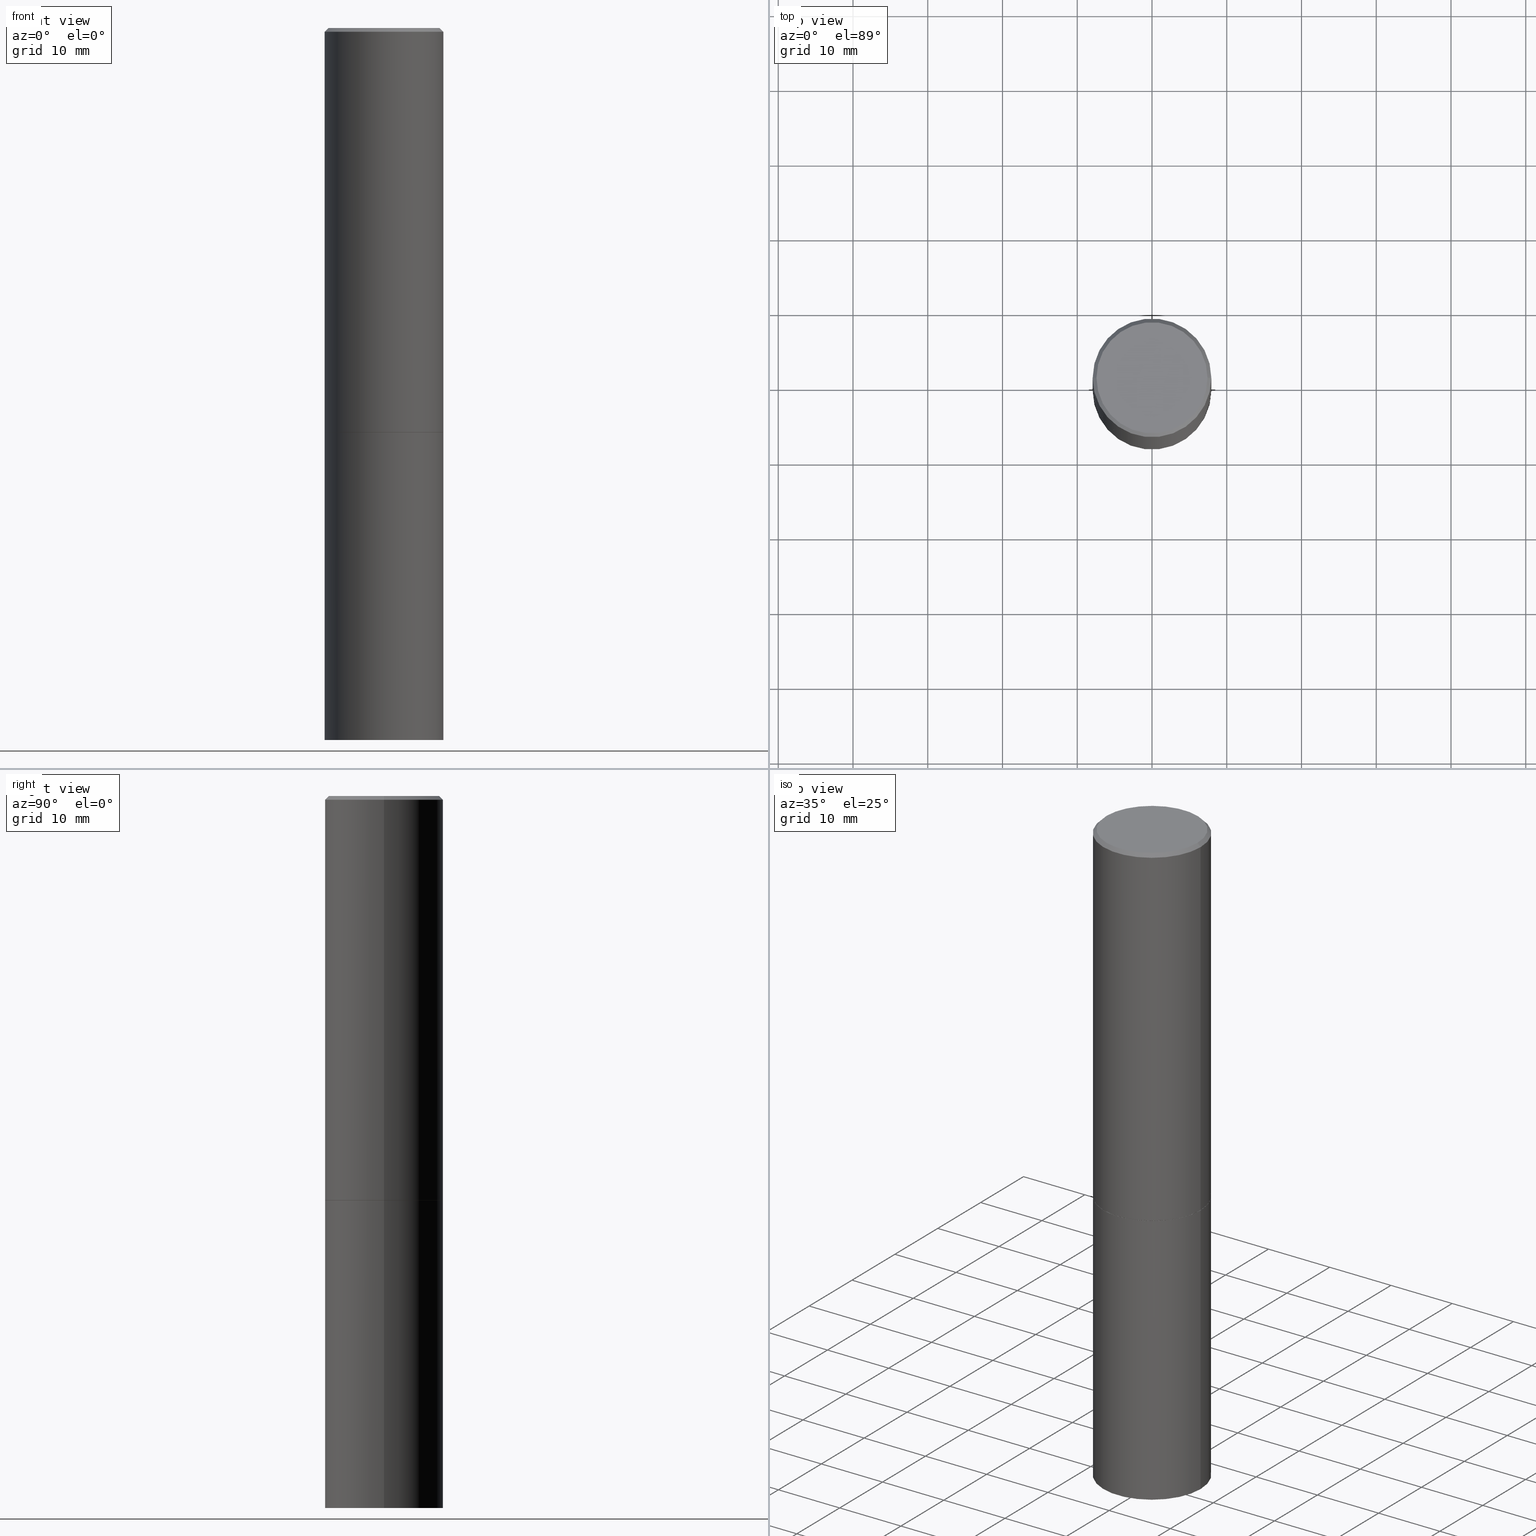
[diagram: canonical four-view strip — front | top / right | iso, engineering-drawing reading convention]
A machine part, canonical four-view strip (front | top / right | iso — engineering-drawing reading convention). The complete STEP part file that produces these views, byte-faithful:
ISO-10303-21;
HEADER;
FILE_DESCRIPTION (( 'STEP AP203' ),
    '1' );
FILE_NAME ('34626.STEP',
    '2024-02-27T16:31:24',
    ( '' ),
    ( '' ),
    'SwSTEP 2.0',
    'SolidWorks 2023',
    '' );
FILE_SCHEMA (( 'CONFIG_CONTROL_DESIGN' ));
ENDSEC;

DATA;
#1 = DIRECTION ( 'NONE',  ( -2.445468806185136597E-29, 3.491481338843145583E-15, 1.000000000000000000 ) ) ;
#2 = CLOSED_SHELL ( 'NONE', ( #269, #187, #178, #171, #207, #67, #230, #317 ) ) ;
#3 = CIRCLE ( 'NONE', #96, 0.3125000000000000000 ) ;
#4 = DIMENSIONAL_EXPONENTS ( 1.000000000000000000, 0.000000000000000000, 0.000000000000000000, 0.000000000000000000, 0.000000000000000000, 0.000000000000000000, 0.000000000000000000 ) ;
#5 = LENGTH_MEASURE_WITH_UNIT ( LENGTH_MEASURE( 0.02539999999999999897 ), #233 );
#6 = ORIENTED_EDGE ( 'NONE', *, *, #288, .F. ) ;
#7 =( CONVERSION_BASED_UNIT ( 'INCH', #5 ) LENGTH_UNIT ( ) NAMED_UNIT ( #4 ) );
#8 = VERTEX_POINT ( 'NONE', #184 ) ;
#9 = EDGE_CURVE ( 'NONE', #280, #33, #139, .T. ) ;
#10 = ORIENTED_EDGE ( 'NONE', *, *, #98, .F. ) ;
#11 = ORIENTED_EDGE ( 'NONE', *, *, #150, .T. ) ;
#12 = CARTESIAN_POINT ( 'NONE',  ( 0.3124999999999998335, -2.213735251080465334E-15, -0.02000000000000006287 ) ) ;
#13 = CARTESIAN_POINT ( 'NONE',  ( 0.3125000000000000000, -9.619031088512858584E-15, -2.129999999999999893 ) ) ;
#14 = LINE ( 'NONE', #210, #347 ) ;
#15 = DIRECTION ( 'NONE',  ( 0.7071067811865467956, -7.319954787623254468E-15, -0.7071067811865482389 ) ) ;
#16 = EDGE_LOOP ( 'NONE', ( #238, #252, #127, #234 ) ) ;
#17 = CIRCLE ( 'NONE', #68, 0.3124999999999998335 ) ;
#18 = ORIENTED_EDGE ( 'NONE', *, *, #9, .T. ) ;
#19 = AXIS2_PLACEMENT_3D ( 'NONE', #311, #55, #60 ) ;
#20 = ORIENTED_EDGE ( 'NONE', *, *, #145, .T. ) ;
#21 = CALENDAR_DATE ( 2024, 27, 2 ) ;
#22 = EDGE_LOOP ( 'NONE', ( #180, #361 ) ) ;
#23 = COORDINATED_UNIVERSAL_TIME_OFFSET ( 5, 0, .BEHIND. ) ;
#24 = VERTEX_POINT ( 'NONE', #71 ) ;
#25 = DIRECTION ( 'NONE',  ( 2.438088387897960049E-29, -3.491481338843145188E-15, -1.000000000000000000 ) ) ;
#26 = APPROVAL ( #168, 'UNSPECIFIED' ) ;
#27 = CARTESIAN_POINT ( 'NONE',  ( 4.890937612370288923E-31, -6.982962677686312563E-17, -0.02000000000000006287 ) ) ;
#28 = COORDINATED_UNIVERSAL_TIME_OFFSET ( 5, 0, .BEHIND. ) ;
#29 = EDGE_LOOP ( 'NONE', ( #224, #273 ) ) ;
#30 = DIRECTION ( 'NONE',  ( 1.000000000000000000, -6.982962677686265922E-15, 0.000000000000000000 ) ) ;
#31 = AXIS2_PLACEMENT_3D ( 'NONE', #331, #354, #78 ) ;
#32 = PRODUCT_DEFINITION_FORMATION_WITH_SPECIFIED_SOURCE ( 'ANY', '', #316, .NOT_KNOWN. ) ;
#33 = VERTEX_POINT ( 'NONE', #328 ) ;
#34 = DIRECTION ( 'NONE',  ( -2.438088387897960049E-29, 3.491481338843145188E-15, 1.000000000000000000 ) ) ;
#35 = DIRECTION ( 'NONE',  ( -1.000000000000000000, 6.982962677686265133E-15, 0.000000000000000000 ) ) ;
#36 = EDGE_CURVE ( 'NONE', #205, #356, #92, .T. ) ;
#37 = PLANE ( 'NONE',  #353 ) ;
#38 = AXIS2_PLACEMENT_3D ( 'NONE', #237, #105, #351 ) ;
#39 = AXIS2_PLACEMENT_3D ( 'NONE', #260, #208, #70 ) ;
#40 = MANIFOLD_SOLID_BREP ( 'Body-Move/Copy2[2]', #2 ) ;
#41 = MANIFOLD_SOLID_BREP ( 'Body-Move/Copy2[1]', #80 ) ;
#42 = ORIENTED_EDGE ( 'NONE', *, *, #225, .F. ) ;
#43 =( NAMED_UNIT ( * ) SI_UNIT ( $, .STERADIAN. ) SOLID_ANGLE_UNIT ( ) );
#44 = CC_DESIGN_PERSON_AND_ORGANIZATION_ASSIGNMENT ( #106, #146, ( #32 ) ) ;
#45 = ADVANCED_BREP_SHAPE_REPRESENTATION ( '34626', ( #41, #40, #39 ), #61 ) ;
#46 = CARTESIAN_POINT ( 'NONE',  ( 5.208848557174341041E-29, -7.436855251735900237E-15, -2.129999999999999893 ) ) ;
#47 = CARTESIAN_POINT ( 'NONE',  ( 5.206403088368155438E-29, -7.433363770397055652E-15, -2.129000000000000004 ) ) ;
#48 = AXIS2_PLACEMENT_3D ( 'NONE', #350, #103, #188 ) ;
#49 = AXIS2_PLACEMENT_3D ( 'NONE', #245, #274, #195 ) ;
#50 = CARTESIAN_POINT ( 'NONE',  ( 0.3114999999999999991, -9.612048125835172570E-15, -2.130000000000000338 ) ) ;
#51 = APPROVAL_ROLE ( '' ) ;
#52 = DIRECTION ( 'NONE',  ( 1.000000000000000000, -6.982962677686265922E-15, 0.000000000000000000 ) ) ;
#53 = PERSON_AND_ORGANIZATION ( #228, #296 ) ;
#54 = ORIENTED_EDGE ( 'NONE', *, *, #158, .T. ) ;
#55 = DIRECTION ( 'NONE',  ( 2.438088387897960049E-29, -3.491481338843145188E-15, -1.000000000000000000 ) ) ;
#56 = PERSON_AND_ORGANIZATION_ROLE ( 'classification_officer' ) ;
#57 = DIRECTION ( 'NONE',  ( -0.7071067811864267805, 7.493145998869918709E-15, 0.7071067811866682540 ) ) ;
#58 = SECURITY_CLASSIFICATION_LEVEL ( 'unclassified' ) ;
#59 = DIRECTION ( 'NONE',  ( 2.438088387897960049E-29, -3.491481338843145188E-15, -1.000000000000000000 ) ) ;
#60 = DIRECTION ( 'NONE',  ( -1.000000000000000000, 6.982962677686265922E-15, -4.876176775795935793E-29 ) ) ;
#61 =( GEOMETRIC_REPRESENTATION_CONTEXT ( 3 ) GLOBAL_UNCERTAINTY_ASSIGNED_CONTEXT ( ( #190 ) ) GLOBAL_UNIT_ASSIGNED_CONTEXT ( ( #7, #291, #43 ) ) REPRESENTATION_CONTEXT ( 'NONE', 'WORKASPACE' ) );
#62 = EDGE_CURVE ( 'NONE', #8, #284, #298, .T. ) ;
#63 = DIRECTION ( 'NONE',  ( -2.445468806185136597E-29, 3.491481338843145583E-15, 1.000000000000000000 ) ) ;
#64 = CIRCLE ( 'NONE', #326, 0.2924999999999997602 ) ;
#65 = ORIENTED_EDGE ( 'NONE', *, *, #158, .F. ) ;
#66 = APPLICATION_CONTEXT ( 'configuration controlled 3d designs of mechanical parts and assemblies' ) ;
#67 = ADVANCED_FACE ( 'NONE', ( #297 ), #285, .T. ) ;
#68 = AXIS2_PLACEMENT_3D ( 'NONE', #77, #341, #90 ) ;
#69 = CC_DESIGN_APPROVAL ( #102, ( #108 ) ) ;
#70 = DIRECTION ( 'NONE',  ( 1.000000000000000000, 0.000000000000000000, 0.000000000000000000 ) ) ;
#71 = CARTESIAN_POINT ( 'NONE',  ( 0.3124999999999998335, -2.213735251080465334E-15, -0.02000000000000006287 ) ) ;
#72 = CIRCLE ( 'NONE', #250, 0.3125000000000000000 ) ;
#73 = ADVANCED_FACE ( 'NONE', ( #76 ), #241, .T. ) ;
#74 = ORIENTED_EDGE ( 'NONE', *, *, #240, .F. ) ;
#75 = EDGE_LOOP ( 'NONE', ( #289, #333, #221, #235 ) ) ;
#76 = FACE_OUTER_BOUND ( 'NONE', #346, .T. ) ;
#77 = CARTESIAN_POINT ( 'NONE',  ( 4.890937612370288923E-31, -6.982962677686312563E-17, -0.02000000000000006287 ) ) ;
#78 = DIRECTION ( 'NONE',  ( 1.000000000000000000, -6.982962677686266711E-15, 4.876176775795936353E-29 ) ) ;
#79 = CC_DESIGN_PERSON_AND_ORGANIZATION_ASSIGNMENT ( #162, #305, ( #316 ) ) ;
#80 = CLOSED_SHELL ( 'NONE', ( #183, #323, #343, #73 ) ) ;
#81 = PERSON_AND_ORGANIZATION ( #228, #296 ) ;
#82 = CONICAL_SURFACE ( 'NONE', #182, 0.3114999999999999991, 0.7853981633972775267 ) ;
#83 = EDGE_LOOP ( 'NONE', ( #200, #191, #151, #128 ) ) ;
#84 = CARTESIAN_POINT ( 'NONE',  ( -0.3125000000000000000, -8.044509086948536533E-15, -2.129999999999999893 ) ) ;
#85 = CYLINDRICAL_SURFACE ( 'NONE', #359, 0.3125000000000000000 ) ;
#86 = DATE_AND_TIME ( #173, #264 ) ;
#87 = ORIENTED_EDGE ( 'NONE', *, *, #300, .F. ) ;
#88 = CARTESIAN_POINT ( 'NONE',  ( -0.3124999999999998335, 2.112346210000093866E-15, -0.02000000000000006287 ) ) ;
#89 = CALENDAR_DATE ( 2024, 27, 2 ) ;
#90 = DIRECTION ( 'NONE',  ( 1.000000000000000000, -6.982962677686265133E-15, 0.000000000000000000 ) ) ;
#91 = APPROVAL_ROLE ( '' ) ;
#92 = CIRCLE ( 'NONE', #38, 0.3125000000000000000 ) ;
#93 = DIRECTION ( 'NONE',  ( -1.000000000000000000, 6.982962677686265922E-15, -4.876176775795935793E-29 ) ) ;
#94 = CC_DESIGN_DATE_AND_TIME_ASSIGNMENT ( #242, #220, ( #122 ) ) ;
#95 = AXIS2_PLACEMENT_3D ( 'NONE', #27, #363, #35 ) ;
#96 = AXIS2_PLACEMENT_3D ( 'NONE', #166, #334, #198 ) ;
#97 = ORIENTED_EDGE ( 'NONE', *, *, #133, .F. ) ;
#98 = EDGE_CURVE ( 'NONE', #261, #142, #319, .T. ) ;
#99 = EDGE_LOOP ( 'NONE', ( #65, #11, #212, #116 ) ) ;
#100 = DIRECTION ( 'NONE',  ( -2.445468806185136597E-29, 3.491481338843145583E-15, 1.000000000000000000 ) ) ;
#101 = CARTESIAN_POINT ( 'NONE',  ( 9.170508023194262238E-29, -1.309305502066179741E-14, -3.750000000000000000 ) ) ;
#102 = APPROVAL ( #132, 'UNSPECIFIED' ) ;
#103 = DIRECTION ( 'NONE',  ( -2.445468806185136597E-29, 3.491481338843145583E-15, 1.000000000000000000 ) ) ;
#104 = APPROVAL_PERSON_ORGANIZATION ( #164, #26, #110 ) ;
#105 = DIRECTION ( 'NONE',  ( -2.445468806185136597E-29, 3.491481338843145583E-15, 1.000000000000000000 ) ) ;
#106 = PERSON_AND_ORGANIZATION ( #228, #296 ) ;
#107 = FACE_OUTER_BOUND ( 'NONE', #243, .T. ) ;
#108 = PRODUCT_DEFINITION ( 'UNKNOWN', '', #32, #247 ) ;
#109 = APPLICATION_CONTEXT ( 'configuration controlled 3d designs of mechanical parts and assemblies' ) ;
#110 = APPROVAL_ROLE ( '' ) ;
#111 = DIRECTION ( 'NONE',  ( -2.445468806185136597E-29, 3.491481338843145583E-15, 1.000000000000000000 ) ) ;
#112 = PERSON_AND_ORGANIZATION_ROLE ( 'creator' ) ;
#113 = APPROVAL_PERSON_ORGANIZATION ( #81, #102, #51 ) ;
#114 = DIRECTION ( 'NONE',  ( 1.000000000000000000, -6.982962677686269077E-15, 0.000000000000000000 ) ) ;
#115 = DIRECTION ( 'NONE',  ( 1.000000000000000000, -6.982962677686266711E-15, 4.876176775795935232E-29 ) ) ;
#116 = ORIENTED_EDGE ( 'NONE', *, *, #236, .F. ) ;
#117 = CARTESIAN_POINT ( 'NONE',  ( 0.2924999999999997602, -2.110215457714318353E-15, 4.268512490114932791E-18 ) ) ;
#118 = FACE_OUTER_BOUND ( 'NONE', #322, .T. ) ;
#119 = ORIENTED_EDGE ( 'NONE', *, *, #126, .F. ) ;
#120 = FACE_OUTER_BOUND ( 'NONE', #29, .T. ) ;
#121 = CIRCLE ( 'NONE', #324, 0.3125000000000000000 ) ;
#122 = SECURITY_CLASSIFICATION ( '', '', #58 ) ;
#123 = LINE ( 'NONE', #12, #262 ) ;
#124 = VECTOR ( 'NONE', #263, 39.37007874015748143 ) ;
#125 = VECTOR ( 'NONE', #175, 39.37007874015748143 ) ;
#126 = EDGE_CURVE ( 'NONE', #33, #280, #64, .T. ) ;
#127 = ORIENTED_EDGE ( 'NONE', *, *, #240, .T. ) ;
#128 = ORIENTED_EDGE ( 'NONE', *, *, #150, .F. ) ;
#129 = VERTEX_POINT ( 'NONE', #268 ) ;
#130 = AXIS2_PLACEMENT_3D ( 'NONE', #46, #214, #330 ) ;
#131 = VECTOR ( 'NONE', #257, 39.37007874015748143 ) ;
#132 = APPROVAL_STATUS ( 'not_yet_approved' ) ;
#133 = EDGE_CURVE ( 'NONE', #284, #24, #294, .T. ) ;
#134 = PERSON_AND_ORGANIZATION ( #228, #296 ) ;
#135 = FACE_OUTER_BOUND ( 'NONE', #153, .T. ) ;
#136 = ORIENTED_EDGE ( 'NONE', *, *, #254, .F. ) ;
#137 = DIRECTION ( 'NONE',  ( -2.445468806185136597E-29, 3.491481338843145583E-15, 1.000000000000000000 ) ) ;
#138 = CARTESIAN_POINT ( 'NONE',  ( 0.3125000000000000000, -1.527523085743875734E-14, -3.750000000000000000 ) ) ;
#139 = CIRCLE ( 'NONE', #48, 0.2924999999999997602 ) ;
#140 = DATE_AND_TIME ( #255, #226 ) ;
#141 = LOCAL_TIME ( 11, 31, 24.00000000000000000, #301 ) ;
#142 = VERTEX_POINT ( 'NONE', #13 ) ;
#143 = DIRECTION ( 'NONE',  ( -2.445468806185136597E-29, 3.491481338843145583E-15, 1.000000000000000000 ) ) ;
#144 = DIRECTION ( 'NONE',  ( -2.445468806185136877E-29, 3.491481338843145188E-15, 1.000000000000000000 ) ) ;
#145 = EDGE_CURVE ( 'NONE', #356, #205, #72, .T. ) ;
#146 = PERSON_AND_ORGANIZATION_ROLE ( 'creator' ) ;
#147 = CARTESIAN_POINT ( 'NONE',  ( 0.3125000000000000000, -9.615539607174015577E-15, -2.129000000000000004 ) ) ;
#148 = CARTESIAN_POINT ( 'NONE',  ( 0.000000000000000000, 0.000000000000000000, 0.000000000000000000 ) ) ;
#149 = CARTESIAN_POINT ( 'NONE',  ( -0.3125000000000000000, -8.044509086948536533E-15, -3.750000000000000000 ) ) ;
#150 = EDGE_CURVE ( 'NONE', #318, #284, #172, .T. ) ;
#151 = ORIENTED_EDGE ( 'NONE', *, *, #62, .T. ) ;
#152 = PRODUCT_RELATED_PRODUCT_CATEGORY ( 'detail', '', ( #316 ) ) ;
#153 = EDGE_LOOP ( 'NONE', ( #336, #18 ) ) ;
#154 = CARTESIAN_POINT ( 'NONE',  ( 0.3124999999999998890, -2.182175836776957558E-15, 1.523805242436229235E-29 ) ) ;
#155 = CC_DESIGN_PERSON_AND_ORGANIZATION_ASSIGNMENT ( #53, #56, ( #122 ) ) ;
#156 = DIRECTION ( 'NONE',  ( -2.445468806185136597E-29, 3.491481338843145583E-15, 1.000000000000000000 ) ) ;
#157 = DIRECTION ( 'NONE',  ( 0.7071067811864267805, -2.468850131080992517E-15, 0.7071067811866682540 ) ) ;
#158 = EDGE_CURVE ( 'NONE', #318, #232, #14, .T. ) ;
#159 = PERSON_AND_ORGANIZATION ( #228, #296 ) ;
#160 = ORIENTED_EDGE ( 'NONE', *, *, #349, .T. ) ;
#161 = DIRECTION ( 'NONE',  ( 1.000000000000000000, -6.982962677686266711E-15, 4.876067333457693400E-29 ) ) ;
#162 = PERSON_AND_ORGANIZATION ( #228, #296 ) ;
#163 = PLANE ( 'NONE',  #348 ) ;
#164 = PERSON_AND_ORGANIZATION ( #228, #296 ) ;
#165 = ORIENTED_EDGE ( 'NONE', *, *, #246, .T. ) ;
#166 = CARTESIAN_POINT ( 'NONE',  ( 5.208848557174341041E-29, -7.436855251735900237E-15, -2.129999999999999893 ) ) ;
#167 = DIRECTION ( 'NONE',  ( -2.445468806185136597E-29, 3.491481338843145583E-15, 1.000000000000000000 ) ) ;
#168 = APPROVAL_STATUS ( 'not_yet_approved' ) ;
#169 = ORIENTED_EDGE ( 'NONE', *, *, #329, .T. ) ;
#170 = CARTESIAN_POINT ( 'NONE',  ( -0.3114999999999999991, -5.223514629843188953E-15, -2.130000000000000338 ) ) ;
#171 = ADVANCED_FACE ( 'NONE', ( #360 ), #179, .T. ) ;
#172 = CIRCLE ( 'NONE', #206, 0.3125000000000000000 ) ;
#173 = CALENDAR_DATE ( 2024, 27, 2 ) ;
#174 = LOCAL_TIME ( 11, 31, 24.00000000000000000, #267 ) ;
#175 = DIRECTION ( 'NONE',  ( -0.7071067811865467956, 2.468850131082249172E-15, -0.7071067811865482389 ) ) ;
#176 = CARTESIAN_POINT ( 'NONE',  ( 5.208848557174341041E-29, -7.436855251735900237E-15, -2.130000000000000338 ) ) ;
#177 = DIRECTION ( 'NONE',  ( 1.000000000000000000, -6.982962677686266711E-15, 4.876176775795936353E-29 ) ) ;
#178 = ADVANCED_FACE ( 'NONE', ( #335 ), #278, .T. ) ;
#179 = CONICAL_SURFACE ( 'NONE', #217, 0.3124999999999998335, 0.7853981633974472798 ) ;
#180 = ORIENTED_EDGE ( 'NONE', *, *, #36, .F. ) ;
#181 = CC_DESIGN_PERSON_AND_ORGANIZATION_ASSIGNMENT ( #159, #307, ( #32 ) ) ;
#182 = AXIS2_PLACEMENT_3D ( 'NONE', #176, #137, #30 ) ;
#183 = ADVANCED_FACE ( 'NONE', ( #118 ), #85, .T. ) ;
#184 = CARTESIAN_POINT ( 'NONE',  ( 0.3114999999999999991, -9.612048125835172570E-15, -2.130000000000000338 ) ) ;
#185 = AXIS2_PLACEMENT_3D ( 'NONE', #266, #295, #52 ) ;
#186 = AXIS2_PLACEMENT_3D ( 'NONE', #358, #25, #93 ) ;
#187 = ADVANCED_FACE ( 'NONE', ( #283 ), #340, .T. ) ;
#188 = DIRECTION ( 'NONE',  ( 1.000000000000000000, -6.982962677686266711E-15, 4.876067333457693400E-29 ) ) ;
#189 = CARTESIAN_POINT ( 'NONE',  ( -1.043851414335219820E-46, 1.490343170380447200E-32, 4.268512490100411279E-18 ) ) ;
#190 = UNCERTAINTY_MEASURE_WITH_UNIT (LENGTH_MEASURE( 1.000000000000000082E-05 ), #7, 'distance_accuracy_value', 'NONE');
#191 = ORIENTED_EDGE ( 'NONE', *, *, #325, .T. ) ;
#192 = FACE_OUTER_BOUND ( 'NONE', #75, .T. ) ;
#193 = AXIS2_PLACEMENT_3D ( 'NONE', #277, #143, #303 ) ;
#194 = PERSON_AND_ORGANIZATION ( #228, #296 ) ;
#195 = DIRECTION ( 'NONE',  ( 1.000000000000000000, -6.982962677686265922E-15, 0.000000000000000000 ) ) ;
#196 = CARTESIAN_POINT ( 'NONE',  ( 0.000000000000000000, 0.000000000000000000, 0.000000000000000000 ) ) ;
#197 = APPROVAL_STATUS ( 'not_yet_approved' ) ;
#198 = DIRECTION ( 'NONE',  ( 1.000000000000000000, -6.982962677686265133E-15, 0.000000000000000000 ) ) ;
#199 = DATE_TIME_ROLE ( 'creation_date' ) ;
#200 = ORIENTED_EDGE ( 'NONE', *, *, #338, .F. ) ;
#201 = PLANE ( 'NONE',  #19 ) ;
#202 = CIRCLE ( 'NONE', #342, 0.3124999999999998335 ) ;
#203 = DIRECTION ( 'NONE',  ( -2.445468806185136877E-29, 3.491481338843145188E-15, 1.000000000000000000 ) ) ;
#204 = CARTESIAN_POINT ( 'NONE',  ( 4.890937612370288923E-31, -6.982962677686312563E-17, -0.02000000000000006287 ) ) ;
#205 = VERTEX_POINT ( 'NONE', #138 ) ;
#206 = AXIS2_PLACEMENT_3D ( 'NONE', #47, #156, #265 ) ;
#207 = ADVANCED_FACE ( 'NONE', ( #366 ), #227, .T. ) ;
#208 = DIRECTION ( 'NONE',  ( 0.000000000000000000, 0.000000000000000000, 1.000000000000000000 ) ) ;
#209 = DIRECTION ( 'NONE',  ( 1.000000000000000000, -6.982962677686269077E-15, 0.000000000000000000 ) ) ;
#210 = CARTESIAN_POINT ( 'NONE',  ( -0.3124999999999998890, 2.220446049250312292E-15, -1.537167215704657391E-29 ) ) ;
#211 = AXIS2_PLACEMENT_3D ( 'NONE', #271, #1, #256 ) ;
#212 = ORIENTED_EDGE ( 'NONE', *, *, #133, .T. ) ;
#213 = VECTOR ( 'NONE', #57, 39.37007874015748143 ) ;
#214 = DIRECTION ( 'NONE',  ( -2.445468806185136597E-29, 3.491481338843145583E-15, 1.000000000000000000 ) ) ;
#215 = DIRECTION ( 'NONE',  ( 1.000000000000000000, -6.982962677686265133E-15, 0.000000000000000000 ) ) ;
#216 = CARTESIAN_POINT ( 'NONE',  ( 5.206403088368155438E-29, -7.433363770397055652E-15, -2.129000000000000004 ) ) ;
#217 = AXIS2_PLACEMENT_3D ( 'NONE', #204, #314, #309 ) ;
#218 = APPROVAL ( #197, 'UNSPECIFIED' ) ;
#219 = COORDINATED_UNIVERSAL_TIME_OFFSET ( 5, 0, .BEHIND. ) ;
#220 = DATE_TIME_ROLE ( 'classification_date' ) ;
#221 = ORIENTED_EDGE ( 'NONE', *, *, #246, .F. ) ;
#222 = DIRECTION ( 'NONE',  ( 1.000000000000000000, -6.982962677686265922E-15, 4.876176775795935793E-29 ) ) ;
#223 = DATE_AND_TIME ( #21, #141 ) ;
#224 = ORIENTED_EDGE ( 'NONE', *, *, #254, .T. ) ;
#225 = EDGE_CURVE ( 'NONE', #280, #24, #123, .T. ) ;
#226 = LOCAL_TIME ( 11, 31, 24.00000000000000000, #28 ) ;
#227 = CYLINDRICAL_SURFACE ( 'NONE', #312, 0.3124999999999998890 ) ;
#228 = PERSON ( 'UNSPECIFIED', 'UNSPECIFIED', 'UNSPECIFIED', ('UNSPECIFIED'), ('UNSPECIFIED'), ('UNSPECIFIED') ) ;
#229 = EDGE_LOOP ( 'NONE', ( #165, #54, #74, #97 ) ) ;
#230 = ADVANCED_FACE ( 'NONE', ( #107 ), #37, .F. ) ;
#231 = APPROVAL_PERSON_ORGANIZATION ( #194, #218, #91 ) ;
#232 = VERTEX_POINT ( 'NONE', #88 ) ;
#233 =( LENGTH_UNIT ( ) NAMED_UNIT ( * ) SI_UNIT ( $, .METRE. ) );
#234 = ORIENTED_EDGE ( 'NONE', *, *, #329, .F. ) ;
#235 = ORIENTED_EDGE ( 'NONE', *, *, #62, .F. ) ;
#236 = EDGE_CURVE ( 'NONE', #232, #24, #202, .T. ) ;
#237 = CARTESIAN_POINT ( 'NONE',  ( 9.170508023194262238E-29, -1.309305502066179741E-14, -3.750000000000000000 ) ) ;
#238 = ORIENTED_EDGE ( 'NONE', *, *, #9, .F. ) ;
#239 = EDGE_LOOP ( 'NONE', ( #42, #119, #169, #290 ) ) ;
#240 = EDGE_CURVE ( 'NONE', #24, #232, #17, .T. ) ;
#241 = CYLINDRICAL_SURFACE ( 'NONE', #31, 0.3125000000000000000 ) ;
#242 = DATE_AND_TIME ( #357, #174 ) ;
#243 = EDGE_LOOP ( 'NONE', ( #87, #315 ) ) ;
#244 = CARTESIAN_POINT ( 'NONE',  ( -0.3125000000000000000, -1.531150649336644619E-15, -2.129000000000000004 ) ) ;
#245 = CARTESIAN_POINT ( 'NONE',  ( 5.208848557174341041E-29, -7.436855251735900237E-15, -2.130000000000000338 ) ) ;
#246 = EDGE_CURVE ( 'NONE', #284, #318, #121, .T. ) ;
#247 = DESIGN_CONTEXT ( 'detailed design', #109, 'design' ) ;
#248 = APPROVAL_DATE_TIME ( #223, #102 ) ;
#249 = LINE ( 'NONE', #306, #125 ) ;
#250 = AXIS2_PLACEMENT_3D ( 'NONE', #101, #100, #209 ) ;
#251 = APPROVAL_DATE_TIME ( #140, #26 ) ;
#252 = ORIENTED_EDGE ( 'NONE', *, *, #225, .T. ) ;
#253 = CARTESIAN_POINT ( 'NONE',  ( 4.890937612370288923E-31, -6.982962677686312563E-17, -0.02000000000000006287 ) ) ;
#254 = EDGE_CURVE ( 'NONE', #142, #261, #3, .T. ) ;
#255 = CALENDAR_DATE ( 2024, 27, 2 ) ;
#256 = DIRECTION ( 'NONE',  ( 1.000000000000000000, -6.982962677686266711E-15, 4.876176775795935232E-29 ) ) ;
#257 = DIRECTION ( 'NONE',  ( -2.445468806185136877E-29, 3.491481338843145188E-15, 1.000000000000000000 ) ) ;
#258 = CC_DESIGN_SECURITY_CLASSIFICATION ( #122, ( #32 ) ) ;
#259 = APPLICATION_PROTOCOL_DEFINITION ( 'international standard', 'config_control_design', 1994, #66 ) ;
#260 = CARTESIAN_POINT ( 'NONE',  ( 0.000000000000000000, 0.000000000000000000, 0.000000000000000000 ) ) ;
#261 = VERTEX_POINT ( 'NONE', #84 ) ;
#262 = VECTOR ( 'NONE', #15, 39.37007874015748143 ) ;
#263 = DIRECTION ( 'NONE',  ( -2.445468806185136877E-29, 3.491481338843145188E-15, 1.000000000000000000 ) ) ;
#264 = LOCAL_TIME ( 11, 31, 24.00000000000000000, #219 ) ;
#265 = DIRECTION ( 'NONE',  ( 1.000000000000000000, -6.982962677686269077E-15, 0.000000000000000000 ) ) ;
#266 = CARTESIAN_POINT ( 'NONE',  ( 5.208848557174341041E-29, -7.436855251735900237E-15, -2.130000000000000338 ) ) ;
#267 = COORDINATED_UNIVERSAL_TIME_OFFSET ( 5, 0, .BEHIND. ) ;
#268 = CARTESIAN_POINT ( 'NONE',  ( -0.3114999999999999991, -5.218216175494965762E-15, -2.130000000000000338 ) ) ;
#269 = ADVANCED_FACE ( 'NONE', ( #192 ), #82, .T. ) ;
#270 = PLANE ( 'NONE',  #186 ) ;
#271 = CARTESIAN_POINT ( 'NONE',  ( 0.000000000000000000, 0.000000000000000000, 0.000000000000000000 ) ) ;
#272 = DATE_AND_TIME ( #89, #286 ) ;
#273 = ORIENTED_EDGE ( 'NONE', *, *, #98, .T. ) ;
#274 = DIRECTION ( 'NONE',  ( -2.445468806185136597E-29, 3.491481338843145583E-15, 1.000000000000000000 ) ) ;
#275 = APPROVAL_DATE_TIME ( #272, #218 ) ;
#276 = ORIENTED_EDGE ( 'NONE', *, *, #288, .T. ) ;
#277 = CARTESIAN_POINT ( 'NONE',  ( 5.208848557174341041E-29, -7.436855251735900237E-15, -2.130000000000000338 ) ) ;
#278 = CONICAL_SURFACE ( 'NONE', #95, 0.3124999999999998335, 0.7853981633974472798 ) ;
#279 = CIRCLE ( 'NONE', #193, 0.3114999999999999991 ) ;
#280 = VERTEX_POINT ( 'NONE', #117 ) ;
#281 = LINE ( 'NONE', #170, #213 ) ;
#282 = CARTESIAN_POINT ( 'NONE',  ( 0.3125000000000000000, -2.182175836776958347E-15, 1.523805242436230075E-29 ) ) ;
#283 = FACE_OUTER_BOUND ( 'NONE', #229, .T. ) ;
#284 = VERTEX_POINT ( 'NONE', #147 ) ;
#285 = CONICAL_SURFACE ( 'NONE', #185, 0.3114999999999999991, 0.7853981633972775267 ) ;
#286 = LOCAL_TIME ( 11, 31, 24.00000000000000000, #23 ) ;
#287 = CARTESIAN_POINT ( 'NONE',  ( -0.3125000000000000000, 2.220446049250313081E-15, -1.537167215704658232E-29 ) ) ;
#288 = EDGE_CURVE ( 'NONE', #205, #142, #308, .T. ) ;
#289 = ORIENTED_EDGE ( 'NONE', *, *, #300, .T. ) ;
#290 = ORIENTED_EDGE ( 'NONE', *, *, #236, .T. ) ;
#291 =( NAMED_UNIT ( * ) PLANE_ANGLE_UNIT ( ) SI_UNIT ( $, .RADIAN. ) );
#292 = CC_DESIGN_DATE_AND_TIME_ASSIGNMENT ( #86, #199, ( #108 ) ) ;
#293 = VECTOR ( 'NONE', #157, 39.37007874015748143 ) ;
#294 = LINE ( 'NONE', #154, #124 ) ;
#295 = DIRECTION ( 'NONE',  ( -2.445468806185136597E-29, 3.491481338843145583E-15, 1.000000000000000000 ) ) ;
#296 = ORGANIZATION ( 'UNSPECIFIED', 'UNSPECIFIED', '' ) ;
#297 = FACE_OUTER_BOUND ( 'NONE', #83, .T. ) ;
#298 = LINE ( 'NONE', #50, #293 ) ;
#299 = DIRECTION ( 'NONE',  ( -2.445468806185136597E-29, 3.491481338843145583E-15, 1.000000000000000000 ) ) ;
#300 = EDGE_CURVE ( 'NONE', #8, #129, #279, .T. ) ;
#301 = COORDINATED_UNIVERSAL_TIME_OFFSET ( 5, 0, .BEHIND. ) ;
#302 = ORIENTED_EDGE ( 'NONE', *, *, #36, .T. ) ;
#303 = DIRECTION ( 'NONE',  ( 1.000000000000000000, -6.982962677686265922E-15, 0.000000000000000000 ) ) ;
#304 = VECTOR ( 'NONE', #203, 39.37007874015748143 ) ;
#305 = PERSON_AND_ORGANIZATION_ROLE ( 'design_owner' ) ;
#306 = CARTESIAN_POINT ( 'NONE',  ( -0.3124999999999998335, 2.112346210000093866E-15, -0.02000000000000006287 ) ) ;
#307 = PERSON_AND_ORGANIZATION_ROLE ( 'design_supplier' ) ;
#308 = LINE ( 'NONE', #282, #304 ) ;
#309 = DIRECTION ( 'NONE',  ( -1.000000000000000000, 6.982962677686265133E-15, 0.000000000000000000 ) ) ;
#310 = MECHANICAL_CONTEXT ( 'NONE', #66, 'mechanical' ) ;
#311 = CARTESIAN_POINT ( 'NONE',  ( 2.182175836777049855E-15, 0.3124999999999868994, -3.750000000000001332 ) ) ;
#312 = AXIS2_PLACEMENT_3D ( 'NONE', #196, #167, #115 ) ;
#313 = CARTESIAN_POINT ( 'NONE',  ( 2.042516583223231356E-15, 0.2924999999999997602, -1.019124035366569212E-15 ) ) ;
#314 = DIRECTION ( 'NONE',  ( 2.445468806185136597E-29, -3.491481338843145583E-15, -1.000000000000000000 ) ) ;
#315 = ORIENTED_EDGE ( 'NONE', *, *, #325, .F. ) ;
#316 = PRODUCT ( '34626', '34626', '', ( #310 ) ) ;
#317 = ADVANCED_FACE ( 'NONE', ( #135 ), #163, .F. ) ;
#318 = VERTEX_POINT ( 'NONE', #244 ) ;
#319 = CIRCLE ( 'NONE', #130, 0.3125000000000000000 ) ;
#320 = CC_DESIGN_APPROVAL ( #26, ( #122 ) ) ;
#321 = PRODUCT_DEFINITION_SHAPE ( 'NONE', 'NONE',  #108 ) ;
#322 = EDGE_LOOP ( 'NONE', ( #302, #160, #136, #6 ) ) ;
#323 = ADVANCED_FACE ( 'NONE', ( #355 ), #201, .T. ) ;
#324 = AXIS2_PLACEMENT_3D ( 'NONE', #216, #339, #114 ) ;
#325 = EDGE_CURVE ( 'NONE', #129, #8, #345, .T. ) ;
#326 = AXIS2_PLACEMENT_3D ( 'NONE', #189, #299, #161 ) ;
#327 = CC_DESIGN_APPROVAL ( #218, ( #32 ) ) ;
#328 = CARTESIAN_POINT ( 'NONE',  ( -0.2924999999999997602, 2.077431396611662611E-15, 4.268512490086005323E-18 ) ) ;
#329 = EDGE_CURVE ( 'NONE', #33, #232, #249, .T. ) ;
#330 = DIRECTION ( 'NONE',  ( 1.000000000000000000, -6.982962677686265133E-15, 0.000000000000000000 ) ) ;
#331 = CARTESIAN_POINT ( 'NONE',  ( 0.000000000000000000, 0.000000000000000000, 0.000000000000000000 ) ) ;
#332 = APPLICATION_PROTOCOL_DEFINITION ( 'international standard', 'config_control_design', 1994, #109 ) ;
#333 = ORIENTED_EDGE ( 'NONE', *, *, #338, .T. ) ;
#334 = DIRECTION ( 'NONE',  ( -2.445468806185136597E-29, 3.491481338843145583E-15, 1.000000000000000000 ) ) ;
#335 = FACE_OUTER_BOUND ( 'NONE', #16, .T. ) ;
#336 = ORIENTED_EDGE ( 'NONE', *, *, #126, .T. ) ;
#337 = CARTESIAN_POINT ( 'NONE',  ( 5.208848557174341041E-29, -7.436855251735900237E-15, -2.129999999999999893 ) ) ;
#338 = EDGE_CURVE ( 'NONE', #129, #318, #281, .T. ) ;
#339 = DIRECTION ( 'NONE',  ( -2.445468806185136597E-29, 3.491481338843145583E-15, 1.000000000000000000 ) ) ;
#340 = CYLINDRICAL_SURFACE ( 'NONE', #211, 0.3124999999999998890 ) ;
#341 = DIRECTION ( 'NONE',  ( -2.445468806185136597E-29, 3.491481338843145583E-15, 1.000000000000000000 ) ) ;
#342 = AXIS2_PLACEMENT_3D ( 'NONE', #253, #111, #215 ) ;
#343 = ADVANCED_FACE ( 'NONE', ( #120 ), #270, .F. ) ;
#344 = LINE ( 'NONE', #287, #131 ) ;
#345 = CIRCLE ( 'NONE', #49, 0.3114999999999999991 ) ;
#346 = EDGE_LOOP ( 'NONE', ( #365, #20, #276, #10 ) ) ;
#347 = VECTOR ( 'NONE', #144, 39.37007874015748143 ) ;
#348 = AXIS2_PLACEMENT_3D ( 'NONE', #313, #59, #362 ) ;
#349 = EDGE_CURVE ( 'NONE', #356, #261, #344, .T. ) ;
#350 = CARTESIAN_POINT ( 'NONE',  ( -1.043851414335219820E-46, 1.490343170380447200E-32, 4.268512490100411279E-18 ) ) ;
#351 = DIRECTION ( 'NONE',  ( 1.000000000000000000, -6.982962677686269077E-15, 0.000000000000000000 ) ) ;
#352 = CC_DESIGN_PERSON_AND_ORGANIZATION_ASSIGNMENT ( #134, #112, ( #108 ) ) ;
#353 = AXIS2_PLACEMENT_3D ( 'NONE', #337, #34, #222 ) ;
#354 = DIRECTION ( 'NONE',  ( -2.445468806185136597E-29, 3.491481338843145583E-15, 1.000000000000000000 ) ) ;
#355 = FACE_OUTER_BOUND ( 'NONE', #22, .T. ) ;
#356 = VERTEX_POINT ( 'NONE', #149 ) ;
#357 = CALENDAR_DATE ( 2024, 27, 2 ) ;
#358 = CARTESIAN_POINT ( 'NONE',  ( 2.182175836777010412E-15, 0.3124999999999925615, -2.130000000000001226 ) ) ;
#359 = AXIS2_PLACEMENT_3D ( 'NONE', #148, #63, #177 ) ;
#360 = FACE_OUTER_BOUND ( 'NONE', #239, .T. ) ;
#361 = ORIENTED_EDGE ( 'NONE', *, *, #145, .F. ) ;
#362 = DIRECTION ( 'NONE',  ( -1.000000000000000000, 6.982962677686265922E-15, -4.876176775795935793E-29 ) ) ;
#363 = DIRECTION ( 'NONE',  ( 2.445468806185136597E-29, -3.491481338843145583E-15, -1.000000000000000000 ) ) ;
#364 = SHAPE_DEFINITION_REPRESENTATION ( #321, #45 ) ;
#365 = ORIENTED_EDGE ( 'NONE', *, *, #349, .F. ) ;
#366 = FACE_OUTER_BOUND ( 'NONE', #99, .T. ) ;
ENDSEC;
END-ISO-10303-21;
